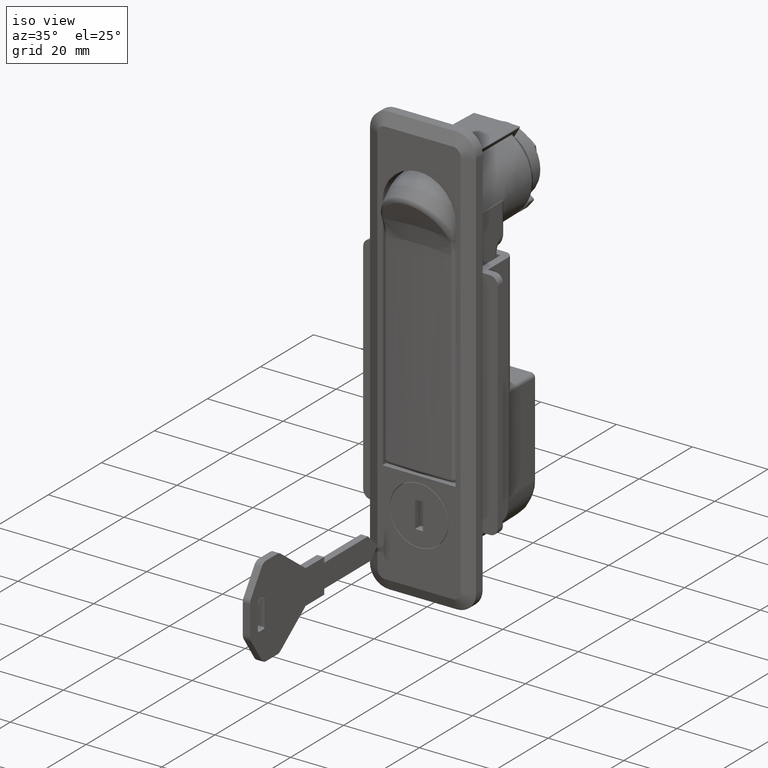
[diagram: clean part render]
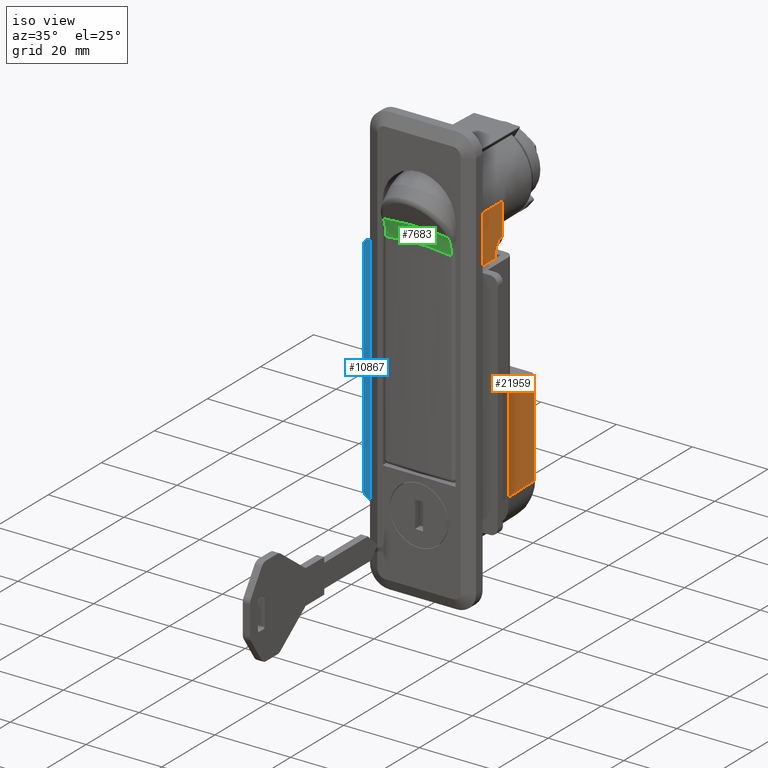
[diagram: same view with three faces highlighted in distinct colors, each labeled with its STEP entity id]
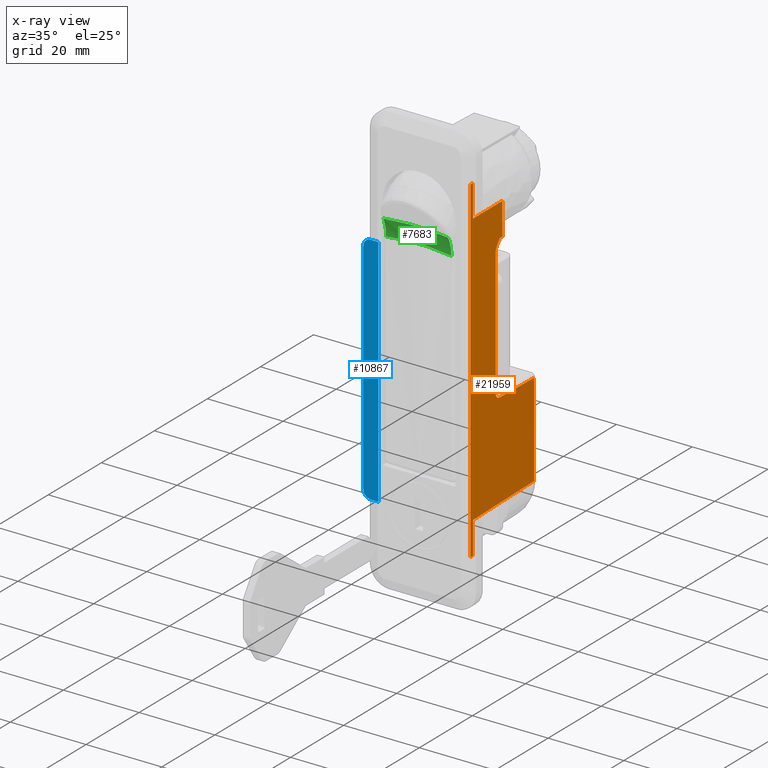
[diagram: x-ray of the same camera — body ghosted, the three highlighted faces saturated]
A machine part, iso view with three faces highlighted in distinct colors.
The next image is the same camera in x-ray (body ghosted, the three faces saturated) — at least one of them is partly hidden behind the body in this view.
Their STEP definitions:

[orange] entity #21959 — the highlighted face is a freeform B-spline surface patch.
#18736=CARTESIAN_POINT('',(11.500000000000000,1.0,-71.972040514722309));
#18737=VERTEX_POINT('',#18736);
#18762=CARTESIAN_POINT('',(11.500000000000000,1.0,-80.500000000000000));
#18763=VERTEX_POINT('',#18762);
#18764=CARTESIAN_POINT('',(11.500000000000000,1.0,-80.500000000000000));
#18765=CARTESIAN_POINT('',(11.500000000000000,1.0,-71.972040514722309));
#18766=QUASI_UNIFORM_CURVE('',1,(#18764,#18765),.UNSPECIFIED.,.F.,.U.);
#18767=EDGE_CURVE('',#18763,#18737,#18766,.T.);
#19310=CARTESIAN_POINT('',(11.500000000000000,12.0,0.0));
#19311=VERTEX_POINT('',#19310);
#19321=CARTESIAN_POINT('',(11.500000000000000,12.0,-8.462308249137211));
#19322=VERTEX_POINT('',#19321);
#19323=CARTESIAN_POINT('',(11.500000000000000,12.0,-8.462308249137211));
#19324=CARTESIAN_POINT('',(11.500000000000000,12.0,0.0));
#19325=QUASI_UNIFORM_CURVE('',1,(#19323,#19324),.UNSPECIFIED.,.F.,.U.);
#19326=EDGE_CURVE('',#19322,#19311,#19325,.T.);
#20010=CARTESIAN_POINT('',(11.500000000000000,1.0,8.500000000000000));
#20011=VERTEX_POINT('',#20010);
#20022=CARTESIAN_POINT('',(11.500000000000000,1.0,0.0));
#20023=VERTEX_POINT('',#20022);
#20024=CARTESIAN_POINT('',(11.500000000000000,1.0,0.0));
#20025=CARTESIAN_POINT('',(11.500000000000000,1.0,8.500000000000000));
#20026=QUASI_UNIFORM_CURVE('',1,(#20024,#20025),.UNSPECIFIED.,.F.,.U.);
#20027=EDGE_CURVE('',#20023,#20011,#20026,.T.);
#20468=CARTESIAN_POINT('',(11.500000000000000,9.500000000000000,-45.012150330194302));
#20469=VERTEX_POINT('',#20468);
#20480=CARTESIAN_POINT('',(11.500000000000000,10.963226609209039,-46.511699501688803));
#20481=VERTEX_POINT('',#20480);
#20482=CARTESIAN_POINT('',(11.500000000000000,9.500000000000000,-45.012150330194302));
#20483=CARTESIAN_POINT('',(11.500000000000000,9.499774448952838,-45.217540773794809));
#20484=CARTESIAN_POINT('',(11.500000000000030,9.575621788648508,-45.579781576239363));
#20485=CARTESIAN_POINT('',(11.499999999999989,9.878116608597152,-46.054143918869812));
#20486=CARTESIAN_POINT('',(11.500000000000000,10.337676272824240,-46.405493781937217));
#20487=CARTESIAN_POINT('',(11.499999999999970,10.745796526760170,-46.506622208221579));
#20488=CARTESIAN_POINT('',(11.500000000000000,10.963226609209039,-46.511699501688803));
#20489=B_SPLINE_CURVE_WITH_KNOTS('',3,(#20482,#20483,#20484,#20485,#20486,#20487,#20488),.UNSPECIFIED.,.F.,.U.,(4,1,1,1,4),(0.000000343157377,0.616112052246179,1.087287532838672,1.667115681419703,2.319473815959687),.UNSPECIFIED.);
#20490=EDGE_CURVE('',#20469,#20481,#20489,.T.);
#20519=CARTESIAN_POINT('',(11.500000000000000,9.500000000000000,-11.359982186056120));
#20520=VERTEX_POINT('',#20519);
#20531=CARTESIAN_POINT('',(11.500000000000000,9.500000000000000,-45.012150330194302));
#20532=CARTESIAN_POINT('',(11.500000000000000,9.500000000000000,-11.359982186056120));
#20533=QUASI_UNIFORM_CURVE('',1,(#20531,#20532),.UNSPECIFIED.,.F.,.U.);
#20534=EDGE_CURVE('',#20469,#20520,#20533,.T.);
#20579=CARTESIAN_POINT('',(11.500000000000000,11.0,-8.486836929816732));
#20580=VERTEX_POINT('',#20579);
#20604=CARTESIAN_POINT('',(11.500000000000000,9.500000000000000,-11.359982186056120));
#20605=CARTESIAN_POINT('',(11.500000000000000,9.500000000000004,-11.220407737402530));
#20606=CARTESIAN_POINT('',(11.500000000000000,9.512993076417875,-11.082881872115429));
#20607=CARTESIAN_POINT('',(11.500000000000000,9.548641956574324,-10.879140862061510));
#20608=CARTESIAN_POINT('',(11.500000000000000,9.563240284373014,-10.811655316763240));
#20609=CARTESIAN_POINT('',(11.500000000000000,9.597499863404067,-10.677482483669269));
#20610=CARTESIAN_POINT('',(11.500000000000000,9.617246488514629,-10.610559633195960));
#20611=CARTESIAN_POINT('',(11.500000000000000,9.682892157873660,-10.413031314498850));
#20612=CARTESIAN_POINT('',(11.500000000000000,9.735071404471823,-10.285602546962419));
#20613=CARTESIAN_POINT('',(11.500000000000000,9.852797965664630,-10.037506954046220));
#20614=CARTESIAN_POINT('',(11.500000000000000,9.918369925058222,-9.916852594694076));
#20615=CARTESIAN_POINT('',(11.500000000000011,10.060185607875979,-9.680941952293944));
#20616=CARTESIAN_POINT('',(11.500000000000000,10.136599246671580,-9.565473502348770));
#20617=CARTESIAN_POINT('',(11.500000000000000,10.296799136685070,-9.339712538365784));
#20618=CARTESIAN_POINT('',(11.500000000000000,10.380394289937531,-9.229640264361260));
#20619=CARTESIAN_POINT('',(11.500000000000000,10.552178603971299,-9.013186749254365));
#20620=CARTESIAN_POINT('',(11.500000000000000,10.640371444936459,-8.906808464977717));
#20621=CARTESIAN_POINT('',(11.500000000000000,10.774378619535090,-8.748621287489877));
#20622=CARTESIAN_POINT('',(11.500000000000000,10.819334310804500,-8.696122522266723));
#20623=CARTESIAN_POINT('',(11.500000000000000,10.909532150026260,-8.591355144042661));
#20624=CARTESIAN_POINT('',(11.500000000000000,10.954884679637169,-8.538959205291350));
#20625=CARTESIAN_POINT('',(11.500000000000000,11.0,-8.486836929816739));
#20626=B_SPLINE_CURVE_WITH_KNOTS('',3,(#20604,#20605,#20606,#20607,#20608,#20609,#20610,#20611,#20612,#20613,#20614,#20615,#20616,#20617,#20618,#20619,#20620,#20621,#20622,#20623,#20624,#20625),.UNSPECIFIED.,.F.,.U.,(4,2,2,2,2,2,2,2,2,2,4),(0.0,0.125000000000002,0.187500000000003,0.250000000000003,0.375000000000002,0.500000000000002,0.625000000000001,0.750000000000001,0.875000000000001,0.937500000000000,1.0),.UNSPECIFIED.);
#20627=EDGE_CURVE('',#20520,#20580,#20626,.T.);
#20751=CARTESIAN_POINT('',(11.500000000000000,24.0,-71.407841509314991));
#20752=VERTEX_POINT('',#20751);
#20852=CARTESIAN_POINT('',(11.500000000000000,24.0,-46.831399830070701));
#20853=VERTEX_POINT('',#20852);
#20864=CARTESIAN_POINT('',(11.500000000000000,24.0,-71.407841509314991));
#20865=CARTESIAN_POINT('',(11.500000000000000,24.0,-46.831399830070701));
#20866=QUASI_UNIFORM_CURVE('',1,(#20864,#20865),.UNSPECIFIED.,.F.,.U.);
#20867=EDGE_CURVE('',#20752,#20853,#20866,.T.);
#21269=CARTESIAN_POINT('',(11.500000000000000,24.0,-46.831399830070701));
#21270=CARTESIAN_POINT('',(11.500000000000000,10.963226609209039,-46.511699501688803));
#21271=QUASI_UNIFORM_CURVE('',1,(#21269,#21270),.UNSPECIFIED.,.F.,.U.);
#21272=EDGE_CURVE('',#20853,#20481,#21271,.T.);
#21559=CARTESIAN_POINT('',(11.500000000000000,11.0,-8.486836929816732));
#21560=CARTESIAN_POINT('',(11.500000000000000,12.0,-8.462308249137211));
#21561=QUASI_UNIFORM_CURVE('',1,(#21559,#21560),.UNSPECIFIED.,.F.,.U.);
#21562=EDGE_CURVE('',#20580,#19322,#21561,.T.);
#21618=CARTESIAN_POINT('',(11.500000000000000,1.0,0.0));
#21619=CARTESIAN_POINT('',(11.500000000000000,12.0,0.0));
#21620=QUASI_UNIFORM_CURVE('',1,(#21618,#21619),.UNSPECIFIED.,.F.,.U.);
#21621=EDGE_CURVE('',#20023,#19311,#21620,.T.);
#21713=CARTESIAN_POINT('',(11.500000000000000,0.0,8.500000000000000));
#21714=VERTEX_POINT('',#21713);
#21715=CARTESIAN_POINT('',(11.500000000000000,1.0,8.500000000000000));
#21716=CARTESIAN_POINT('',(11.500000000000000,0.0,8.500000000000000));
#21717=QUASI_UNIFORM_CURVE('',1,(#21715,#21716),.UNSPECIFIED.,.F.,.U.);
#21718=EDGE_CURVE('',#20011,#21714,#21717,.T.);
#21766=CARTESIAN_POINT('',(11.500000000000000,0.0,-80.500000000000000));
#21767=VERTEX_POINT('',#21766);
#21768=CARTESIAN_POINT('',(11.500000000000000,1.0,-80.500000000000000));
#21769=CARTESIAN_POINT('',(11.500000000000000,0.0,-80.500000000000000));
#21770=QUASI_UNIFORM_CURVE('',1,(#21768,#21769),.UNSPECIFIED.,.F.,.U.);
#21771=EDGE_CURVE('',#18763,#21767,#21770,.T.);
#21895=CARTESIAN_POINT('',(11.500000000000000,1.0,-71.972040514722309));
#21896=CARTESIAN_POINT('',(11.500000000000000,24.0,-71.407841509314991));
#21897=QUASI_UNIFORM_CURVE('',1,(#21895,#21896),.UNSPECIFIED.,.F.,.U.);
#21898=EDGE_CURVE('',#18737,#20752,#21897,.T.);
#21934=CARTESIAN_POINT('',(11.500000000000000,-1.198799953483342,-84.945549827500727));
#21935=CARTESIAN_POINT('',(11.500000000000000,25.198800597213509,-84.945549827500727));
#21936=CARTESIAN_POINT('',(11.500000000000000,-1.198799953483342,12.945552214666760));
#21937=CARTESIAN_POINT('',(11.500000000000000,25.198800597213509,12.945552214666760));
#21938=B_SPLINE_SURFACE_WITH_KNOTS('',1,1,((#21934,#21936),(#21935,#21937)),.UNSPECIFIED.,.F.,.F.,.U.,(2,2),(2,2),(0.0,26.397600550696851),(0.0,97.891102042167489),.UNSPECIFIED.);
#21939=ORIENTED_EDGE('',*,*,#21771,.F.);
#21940=ORIENTED_EDGE('',*,*,#18767,.T.);
#21941=ORIENTED_EDGE('',*,*,#21898,.T.);
#21942=ORIENTED_EDGE('',*,*,#20867,.T.);
#21943=ORIENTED_EDGE('',*,*,#21272,.T.);
#21944=ORIENTED_EDGE('',*,*,#20490,.F.);
#21945=ORIENTED_EDGE('',*,*,#20534,.T.);
#21946=ORIENTED_EDGE('',*,*,#20627,.T.);
#21947=ORIENTED_EDGE('',*,*,#21562,.T.);
#21948=ORIENTED_EDGE('',*,*,#19326,.T.);
#21949=ORIENTED_EDGE('',*,*,#21621,.F.);
#21950=ORIENTED_EDGE('',*,*,#20027,.T.);
#21951=ORIENTED_EDGE('',*,*,#21718,.T.);
#21952=CARTESIAN_POINT('',(11.500000000000000,0.0,-80.500000000000000));
#21953=CARTESIAN_POINT('',(11.500000000000000,0.0,8.500000000000000));
#21954=QUASI_UNIFORM_CURVE('',1,(#21952,#21953),.UNSPECIFIED.,.F.,.U.);
#21955=EDGE_CURVE('',#21767,#21714,#21954,.T.);
#21956=ORIENTED_EDGE('',*,*,#21955,.F.);
#21957=EDGE_LOOP('',(#21939,#21940,#21941,#21942,#21943,#21944,#21945,#21946,#21947,#21948,#21949,#21950,#21951,#21956));
#21958=FACE_OUTER_BOUND('',#21957,.T.);
#21959=ADVANCED_FACE('',(#21958),#21938,.T.);

[blue] entity #10867 — the highlighted face is a freeform B-spline surface patch.
#10629=CARTESIAN_POINT('',(-15.749599999999999,1.299994665527336,-74.500000000000000));
#10630=VERTEX_POINT('',#10629);
#10636=CARTESIAN_POINT('',(-17.749600000000001,1.299994665527336,-72.500000000000000));
#10637=VERTEX_POINT('',#10636);
#10638=CARTESIAN_POINT('',(-17.749600000000001,1.299994665527336,-72.500000000000000));
#10639=CARTESIAN_POINT('',(-17.749681486375959,1.299994665527336,-72.696351861270671));
#10640=CARTESIAN_POINT('',(-17.696163757957311,1.299994665527350,-73.056287053070648));
#10641=CARTESIAN_POINT('',(-17.489040197087590,1.299994665527223,-73.523518224244270));
#10642=CARTESIAN_POINT('',(-17.189985970646909,1.299994665527436,-73.916575144724405));
#10643=CARTESIAN_POINT('',(-16.841933379203319,1.299994665527265,-74.195148169265693));
#10644=CARTESIAN_POINT('',(-16.354864592599299,1.299994665527294,-74.432851422994787));
#10645=CARTESIAN_POINT('',(-15.995080711786599,1.299994665527819,-74.500229125100319));
#10646=CARTESIAN_POINT('',(-15.749599999999999,1.299994665527336,-74.500000000000000));
#10647=B_SPLINE_CURVE_WITH_KNOTS('',3,(#10638,#10639,#10640,#10641,#10642,#10643,#10644,#10645,#10646),.UNSPECIFIED.,.F.,.U.,(4,1,1,1,1,1,4),(0.000000332090700,0.589051130114741,1.079957576404716,1.521795435852443,2.061714244390337,2.405345263374512,3.141671488703164),.UNSPECIFIED.);
#10648=EDGE_CURVE('',#10637,#10630,#10647,.T.);
#10671=CARTESIAN_POINT('',(-17.749600000000001,1.299994665527336,-14.500000000000000));
#10672=VERTEX_POINT('',#10671);
#10673=CARTESIAN_POINT('',(-17.749600000000001,1.299994665527336,-72.500000000000000));
#10674=CARTESIAN_POINT('',(-17.749600000000001,1.299994665527336,-14.500000000000000));
#10675=QUASI_UNIFORM_CURVE('',1,(#10673,#10674),.UNSPECIFIED.,.F.,.U.);
#10676=EDGE_CURVE('',#10637,#10672,#10675,.T.);
#10791=CARTESIAN_POINT('',(-13.749599999999999,1.299994665527336,-12.500000000000000));
#10792=VERTEX_POINT('',#10791);
#10805=CARTESIAN_POINT('',(-13.749599999999999,1.299994665527336,-74.500000000000000));
#10806=VERTEX_POINT('',#10805);
#10807=CARTESIAN_POINT('',(-13.749599999999999,1.299994665527336,-74.500000000000000));
#10808=CARTESIAN_POINT('',(-13.749599999999999,1.299994665527336,-12.500000000000000));
#10809=QUASI_UNIFORM_CURVE('',1,(#10807,#10808),.UNSPECIFIED.,.F.,.U.);
#10810=EDGE_CURVE('',#10806,#10792,#10809,.T.);
#10834=CARTESIAN_POINT('',(-13.549800007752779,1.299994665527336,-77.596899879831966));
#10835=CARTESIAN_POINT('',(-13.549800007752779,1.299994665527336,-9.403098457198446));
#10836=CARTESIAN_POINT('',(-17.949400099535580,1.299994665527336,-77.596899879831966));
#10837=CARTESIAN_POINT('',(-17.949400099535580,1.299994665527336,-9.403098457198446));
#10838=B_SPLINE_SURFACE_WITH_KNOTS('',1,1,((#10834,#10836),(#10835,#10837)),.UNSPECIFIED.,.F.,.F.,.U.,(2,2),(2,2),(0.0,68.193801422633527),(0.0,4.399600091782807),.UNSPECIFIED.);
#10839=ORIENTED_EDGE('',*,*,#10676,.F.);
#10840=ORIENTED_EDGE('',*,*,#10648,.T.);
#10841=CARTESIAN_POINT('',(-15.749599999999999,1.299994665527336,-74.500000000000000));
#10842=CARTESIAN_POINT('',(-13.749599999999999,1.299994665527336,-74.500000000000000));
#10843=QUASI_UNIFORM_CURVE('',1,(#10841,#10842),.UNSPECIFIED.,.F.,.U.);
#10844=EDGE_CURVE('',#10630,#10806,#10843,.T.);
#10845=ORIENTED_EDGE('',*,*,#10844,.T.);
#10846=ORIENTED_EDGE('',*,*,#10810,.T.);
#10847=CARTESIAN_POINT('',(-15.749599999999999,1.299994665527336,-12.500000000000000));
#10848=VERTEX_POINT('',#10847);
#10849=CARTESIAN_POINT('',(-15.749599999999999,1.299994665527336,-12.500000000000000));
#10850=CARTESIAN_POINT('',(-13.749599999999999,1.299994665527336,-12.500000000000000));
#10851=QUASI_UNIFORM_CURVE('',1,(#10849,#10850),.UNSPECIFIED.,.F.,.U.);
#10852=EDGE_CURVE('',#10848,#10792,#10851,.T.);
#10853=ORIENTED_EDGE('',*,*,#10852,.F.);
#10854=CARTESIAN_POINT('',(-15.749599999999999,1.299994665527336,-12.500000000000000));
#10855=CARTESIAN_POINT('',(-16.027798820865279,1.299994665527265,-12.499676623705540));
#10856=CARTESIAN_POINT('',(-16.534816541601050,1.299994665527720,-12.607555623778710));
#10857=CARTESIAN_POINT('',(-17.087033809688609,1.299994665526953,-12.976585802267410));
#10858=CARTESIAN_POINT('',(-17.426098554541142,1.299994665527777,-13.379813563543960));
#10859=CARTESIAN_POINT('',(-17.676380729134522,1.299994665527180,-13.861989313952851));
#10860=CARTESIAN_POINT('',(-17.749792548212952,1.299994665526754,-14.254531706225450));
#10861=CARTESIAN_POINT('',(-17.749600000000001,1.299994665527336,-14.500000000000000));
#10862=B_SPLINE_CURVE_WITH_KNOTS('',3,(#10854,#10855,#10856,#10857,#10858,#10859,#10860,#10861),.UNSPECIFIED.,.F.,.U.,(4,1,1,1,1,4),(0.000000332095268,0.834509685070841,1.521795435853966,1.963512975546005,2.405345263374878,3.141671488703079),.UNSPECIFIED.);
#10863=EDGE_CURVE('',#10848,#10672,#10862,.T.);
#10864=ORIENTED_EDGE('',*,*,#10863,.T.);
#10865=EDGE_LOOP('',(#10839,#10840,#10845,#10846,#10853,#10864));
#10866=FACE_OUTER_BOUND('',#10865,.T.);
#10867=ADVANCED_FACE('',(#10866),#10838,.T.);

[green] entity #7683 — the highlighted face is a freeform B-spline surface patch.
#7549=CARTESIAN_POINT('',(8.808139502732576,-3.074865695293822,-8.226515073689273));
#7550=CARTESIAN_POINT('',(8.785172254526577,-3.077070539517008,-8.221789226820777));
#7551=CARTESIAN_POINT('',(8.762205001247562,-3.079275384227202,-8.217063378908438));
#7552=CARTESIAN_POINT('',(2.929870969087852,-3.639176504429395,-7.016975441743509));
#7553=CARTESIAN_POINT('',(-2.929870969088009,-3.639176504428206,-7.016975441743392));
#7554=CARTESIAN_POINT('',(-8.762205001247679,-3.079275384227201,-8.217063378908458));
#7555=CARTESIAN_POINT('',(-8.785172254526643,-3.077070539517017,-8.221789226820784));
#7556=CARTESIAN_POINT('',(-8.808139502732592,-3.074865695293840,-8.226515073689271));
#7557=CARTESIAN_POINT('',(8.810332501741121,-3.074653290462903,-8.214665641648406));
#7558=CARTESIAN_POINT('',(8.787359405880126,-3.076859251909658,-8.209939826636791));
#7559=CARTESIAN_POINT('',(8.764386306212845,-3.079065213721906,-8.205214010842189));
#7560=CARTESIAN_POINT('',(2.930608680307428,-3.639246070910911,-7.005142673234084));
#7561=CARTESIAN_POINT('',(-2.930608680307592,-3.639246070910019,-7.005142673233835));
#7562=CARTESIAN_POINT('',(-8.764386306212963,-3.079065213721904,-8.205214010842209));
#7563=CARTESIAN_POINT('',(-8.787359405880192,-3.076859251909664,-8.209939826636800));
#7564=CARTESIAN_POINT('',(-8.810332501741137,-3.074653290462917,-8.214665641648406));
#7565=CARTESIAN_POINT('',(8.814720417176668,-3.074228295087824,-8.190956417179056));
#7566=CARTESIAN_POINT('',(8.791735620530448,-3.076436491993563,-8.186230667872618));
#7567=CARTESIAN_POINT('',(8.768750822614441,-3.078644689021289,-8.181504918305102));
#7568=CARTESIAN_POINT('',(2.932084716467329,-3.639385261748070,-6.981467292233752));
#7569=CARTESIAN_POINT('',(-2.932084716467510,-3.639385261747771,-6.981467292233242));
#7570=CARTESIAN_POINT('',(-8.768750822614559,-3.078644689021285,-8.181504918305121));
#7571=CARTESIAN_POINT('',(-8.791735620530513,-3.076436491993565,-8.186230667872630));
#7572=CARTESIAN_POINT('',(-8.814720417176684,-3.074228295087832,-8.190956417179059));
#7573=CARTESIAN_POINT('',(9.269274945298877,-3.030202019967140,-5.734861832153356));
#7574=CARTESIAN_POINT('',(9.245075418354814,-3.032642046289888,-5.730157074691131));
#7575=CARTESIAN_POINT('',(9.220876166931529,-3.035082044832012,-5.725452370794348));
#7576=CARTESIAN_POINT('',(3.084765097284513,-3.653783086544709,-4.532498706423089));
#7577=CARTESIAN_POINT('',(-3.084765097286316,-3.653783086605719,-4.532498706395652));
#7578=CARTESIAN_POINT('',(-9.220876166931641,-3.035082044831758,-5.725452370794476));
#7579=CARTESIAN_POINT('',(-9.245075418354869,-3.032642046289397,-5.730157074691356));
#7580=CARTESIAN_POINT('',(-9.269274945298871,-3.030202019966413,-5.734861832153681));
#7581=CARTESIAN_POINT('',(9.783559376262836,-4.155870265990278,-3.564395050973351));
#7582=CARTESIAN_POINT('',(9.758048826494552,-4.158321197081500,-3.559669267390814));
#7583=CARTESIAN_POINT('',(9.732538275280176,-4.160772128311657,-3.554943483540393));
#7584=CARTESIAN_POINT('',(3.254491457987828,-4.783151751609001,-2.354896931265767));
#7585=CARTESIAN_POINT('',(-3.254491457987994,-4.783151751608556,-2.354896931266183));
#7586=CARTESIAN_POINT('',(-9.732538275280305,-4.160772128311652,-3.554943483540410));
#7587=CARTESIAN_POINT('',(-9.758048826494624,-4.158321197081502,-3.559669267390820));
#7588=CARTESIAN_POINT('',(-9.783559376262852,-4.155870265990287,-3.564395050973344));
#7589=CARTESIAN_POINT('',(9.788587976974394,-4.166876891511343,-3.543172532570819));
#7590=CARTESIAN_POINT('',(9.763064637185998,-4.169327992814162,-3.538446420793366));
#7591=CARTESIAN_POINT('',(9.737541293095228,-4.171779094530155,-3.533720308219250));
#7592=CARTESIAN_POINT('',(3.256153472212292,-4.794210886903144,-2.333573165702586));
#7593=CARTESIAN_POINT('',(-3.256153472212443,-4.794210886902097,-2.333573165703276));
#7594=CARTESIAN_POINT('',(-9.737541293095358,-4.171779094530152,-3.533720308219265));
#7595=CARTESIAN_POINT('',(-9.763064637186067,-4.169327992814168,-3.538446420793369));
#7596=CARTESIAN_POINT('',(-9.788587976974410,-4.166876891511357,-3.543172532570809));
#7597=CARTESIAN_POINT('',(9.791068792592478,-4.172306912716293,-3.532702591104420));
#7598=CARTESIAN_POINT('',(9.765539143167665,-4.174758098445115,-3.527976316540263));
#7599=CARTESIAN_POINT('',(9.740009488030294,-4.177209284722412,-3.523250040918545));
#7600=CARTESIAN_POINT('',(3.256973429738858,-4.799666929991272,-2.323053049923234));
#7601=CARTESIAN_POINT('',(-3.256973429739000,-4.799666929989930,-2.323053049924059));
#7602=CARTESIAN_POINT('',(-9.740009488030424,-4.177209284722409,-3.523250040918559));
#7603=CARTESIAN_POINT('',(-9.765539143167732,-4.174758098445122,-3.527976316540264));
#7604=CARTESIAN_POINT('',(-9.791068792592494,-4.172306912716312,-3.532702591104408));
#7612=(BOUNDED_SURFACE()B_SPLINE_SURFACE(3,2,((#7549,#7557,#7565,#7573,#7581,#7589,#7597),(#7550,#7558,#7566,#7574,#7582,#7590,#7598),(#7551,#7559,#7567,#7575,#7583,#7591,#7599),(#7552,#7560,#7568,#7576,#7584,#7592,#7600),(#7553,#7561,#7569,#7577,#7585,#7593,#7601),(#7554,#7562,#7570,#7578,#7586,#7594,#7602),(#7555,#7563,#7571,#7579,#7587,#7595,#7603),(#7556,#7564,#7572,#7580,#7588,#7596,#7604)),.UNSPECIFIED.,.F.,.F.,.U.)B_SPLINE_SURFACE_WITH_KNOTS((4,2,2,4),(3,1,1,1,1,3),(0.0,0.078236723802195,19.866975561597460,19.945212285399489),(0.0,0.024491760815486,0.048983230532804,4.946696696212193,4.971827435952389,4.996319201515825),.UNSPECIFIED.)GEOMETRIC_REPRESENTATION_ITEM()RATIONAL_B_SPLINE_SURFACE(((1.000590904135327,1.000443177223587,1.000147725155924,0.970458470082132,1.000151581039825,1.000450889020029,1.000598615960407),(1.000590793629945,1.000443094344715,1.000147697529742,0.970463994663622,1.000151552692552,1.000450804698968,1.000598504012831),(1.000590683124563,1.000443011465843,1.000147669903561,0.970469519245112,1.000151524345279,1.000450720377907,1.000598392065256),(1.000562622034874,1.000421965690266,1.000140654672829,0.971872399121922,1.000144326004805,1.000429308381486,1.000569964753362),(1.000562622034874,1.000421965690266,1.000140654672829,0.971872399121922,1.000144326004805,1.000429308381486,1.000569964753362),(1.000590683124563,1.000443011465843,1.000147669903561,0.970469519245112,1.000151524345279,1.000450720377907,1.000598392065256),(1.000590793629945,1.000443094344715,1.000147697529742,0.970463994663622,1.000151552692552,1.000450804698968,1.000598504012831),(1.000590904135327,1.000443177223587,1.000147725155924,0.970458470082132,1.000151581039825,1.000450889020029,1.000598615960407)))REPRESENTATION_ITEM('')SURFACE());
#7613=CARTESIAN_POINT('',(-8.484769234705651,-4.267431936571640,-3.349286469111200));
#7614=VERTEX_POINT('',#7613);
#7615=CARTESIAN_POINT('',(-8.568355899676670,-3.839200139073625,-4.282359075509615));
#7616=VERTEX_POINT('',#7615);
#7617=CARTESIAN_POINT('',(-8.484769234705651,-4.267431936571640,-3.349286469111200));
#7618=CARTESIAN_POINT('',(-8.534410194693031,-4.110569167868410,-3.651067679974447));
#7619=CARTESIAN_POINT('',(-8.562384179466113,-3.967217951164110,-3.963429335055447));
#7620=CARTESIAN_POINT('',(-8.568355899676670,-3.839200139073625,-4.282359075509615));
#7621=B_SPLINE_CURVE_WITH_KNOTS('',3,(#7617,#7618,#7619,#7620),.UNSPECIFIED.,.F.,.U.,(4,4),(2.598303E-009,1.031166614321085),.UNSPECIFIED.);
#7622=EDGE_CURVE('',#7614,#7616,#7621,.T.);
#7623=ORIENTED_EDGE('',*,*,#7622,.T.);
#7624=CARTESIAN_POINT('',(-8.644524750559700,-3.090522511815601,-8.143788632818842));
#7625=VERTEX_POINT('',#7624);
#7626=CARTESIAN_POINT('',(-8.568355899676670,-3.839200139073625,-4.282359075509615));
#7627=CARTESIAN_POINT('',(-8.577477060112809,-3.655260934365848,-4.741514700734153));
#7628=CARTESIAN_POINT('',(-8.602425574058113,-3.251944927291428,-6.000850585457886));
#7629=CARTESIAN_POINT('',(-8.628370127750609,-3.091975454933797,-7.319400332071446));
#7630=CARTESIAN_POINT('',(-8.644524750559700,-3.090522511815601,-8.143788632818842));
#7631=B_SPLINE_CURVE_WITH_KNOTS('',3,(#7626,#7627,#7628,#7629,#7630),.UNSPECIFIED.,.F.,.U.,(4,1,4),(9.295315E-009,1.484149761152318,3.957732542652371),.UNSPECIFIED.);
#7632=EDGE_CURVE('',#7616,#7625,#7631,.T.);
#7633=ORIENTED_EDGE('',*,*,#7632,.T.);
#7634=CARTESIAN_POINT('',(8.644524750559690,-3.090522511815601,-8.143788632818842));
#7635=VERTEX_POINT('',#7634);
#7636=CARTESIAN_POINT('',(8.644524750559690,-3.090522511815601,-8.143788632818842));
#7637=CARTESIAN_POINT('',(-1.321721E-013,-3.911319164885144,-6.388108170123058));
#7638=CARTESIAN_POINT('',(-8.644524750559915,-3.090522511815505,-8.143788632818810));
#7646=(BOUNDED_CURVE()B_SPLINE_CURVE(2,(#7636,#7637,#7638),.UNSPECIFIED.,.F.,.U.)CURVE()GEOMETRIC_REPRESENTATION_ITEM()QUASI_UNIFORM_CURVE()RATIONAL_B_SPLINE_CURVE((1.0,0.995522511815597,1.0))REPRESENTATION_ITEM(''));
#7647=EDGE_CURVE('',#7635,#7625,#7646,.T.);
#7648=ORIENTED_EDGE('',*,*,#7647,.F.);
#7649=CARTESIAN_POINT('',(8.568355899676650,-3.839200139073625,-4.282359075509615));
#7650=VERTEX_POINT('',#7649);
#7651=CARTESIAN_POINT('',(8.644524750559690,-3.090522511815601,-8.143788632818842));
#7652=CARTESIAN_POINT('',(8.634024427547200,-3.091578171649123,-7.607949349319845));
#7653=CARTESIAN_POINT('',(8.608113075457537,-3.196016019165767,-6.289181305611734));
#7654=CARTESIAN_POINT('',(8.582797043998031,-3.547818758168341,-5.009315145349756));
#7655=CARTESIAN_POINT('',(8.568355899676650,-3.839200139073625,-4.282359075509615));
#7656=B_SPLINE_CURVE_WITH_KNOTS('',3,(#7651,#7652,#7653,#7654,#7655),.UNSPECIFIED.,.F.,.U.,(4,1,4),(9.295150E-009,1.607835794516609,3.957732542617726),.UNSPECIFIED.);
#7657=EDGE_CURVE('',#7635,#7650,#7656,.T.);
#7658=ORIENTED_EDGE('',*,*,#7657,.T.);
#7659=CARTESIAN_POINT('',(8.484769234705629,-4.267431936571640,-3.349286469111200));
#7660=VERTEX_POINT('',#7659);
#7661=CARTESIAN_POINT('',(8.568355899676650,-3.839200139073625,-4.282359075509615));
#7662=CARTESIAN_POINT('',(8.562395179109410,-3.967207926118634,-3.963432160826414));
#7663=CARTESIAN_POINT('',(8.534401227381839,-4.110577123739089,-3.651065937975583));
#7664=CARTESIAN_POINT('',(8.484769234705629,-4.267431936571640,-3.349286469111200));
#7665=B_SPLINE_CURVE_WITH_KNOTS('',3,(#7661,#7662,#7663,#7664),.UNSPECIFIED.,.F.,.U.,(4,4),(2.598312E-009,1.031166614321088),.UNSPECIFIED.);
#7666=EDGE_CURVE('',#7650,#7660,#7665,.T.);
#7667=ORIENTED_EDGE('',*,*,#7666,.T.);
#7668=CARTESIAN_POINT('',(-8.484769234705651,-4.267431936571640,-3.349286469111200));
#7669=CARTESIAN_POINT('',(9.334200E-014,-4.979532750674615,-1.976243241394032));
#7670=CARTESIAN_POINT('',(8.484769234705958,-4.267431936571697,-3.349286469111201));
#7678=(BOUNDED_CURVE()B_SPLINE_CURVE(2,(#7668,#7669,#7670),.UNSPECIFIED.,.F.,.U.)CURVE()GEOMETRIC_REPRESENTATION_ITEM()QUASI_UNIFORM_CURVE()RATIONAL_B_SPLINE_CURVE((1.0,0.996496630201244,1.0))REPRESENTATION_ITEM(''));
#7679=EDGE_CURVE('',#7614,#7660,#7678,.T.);
#7680=ORIENTED_EDGE('',*,*,#7679,.F.);
#7681=EDGE_LOOP('',(#7623,#7633,#7648,#7658,#7667,#7680));
#7682=FACE_OUTER_BOUND('',#7681,.T.);
#7683=ADVANCED_FACE('',(#7682),#7612,.F.);